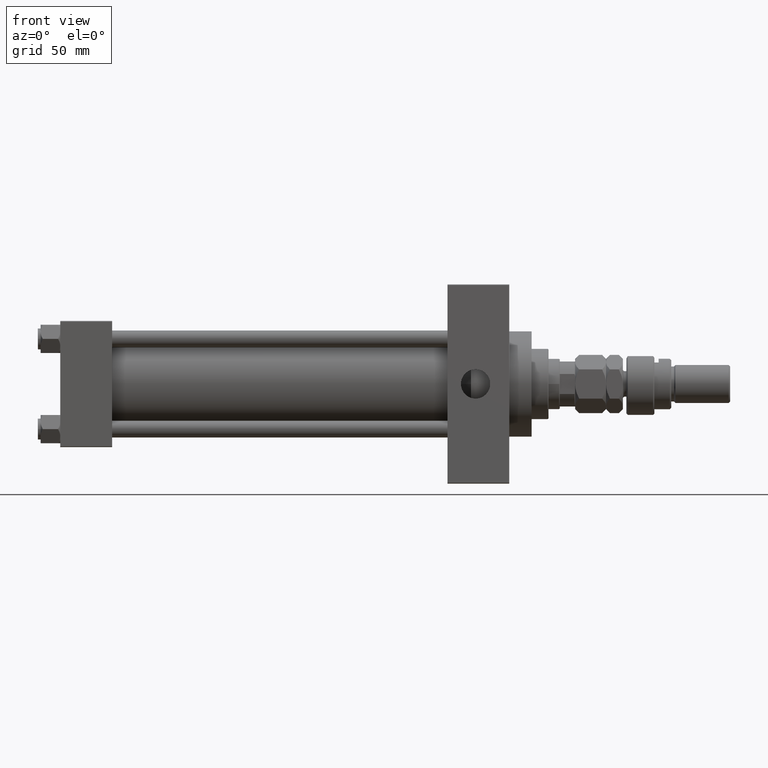
[diagram: clean part render]
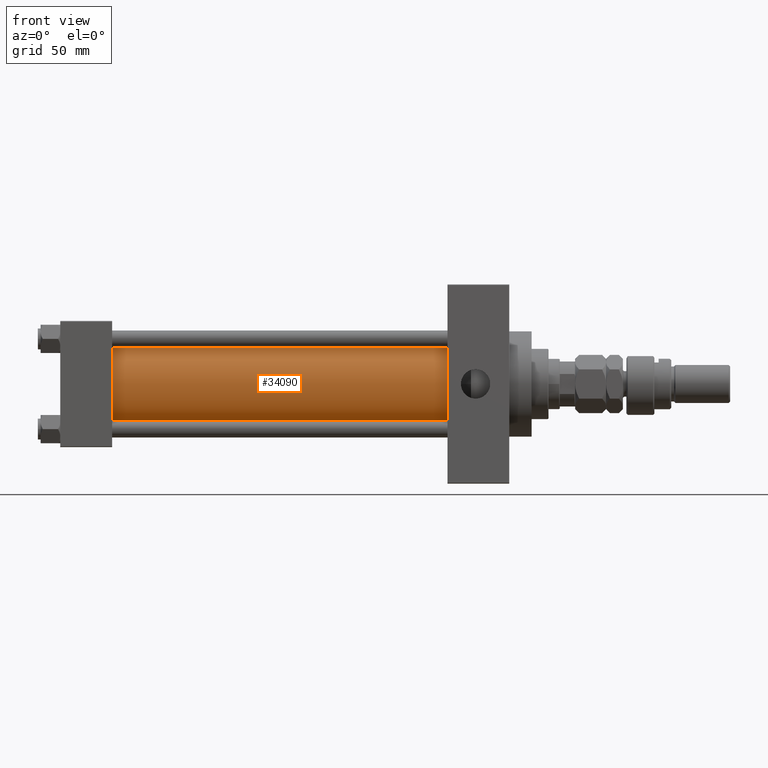
[diagram: same view with one face highlighted and labeled with its STEP entity id]
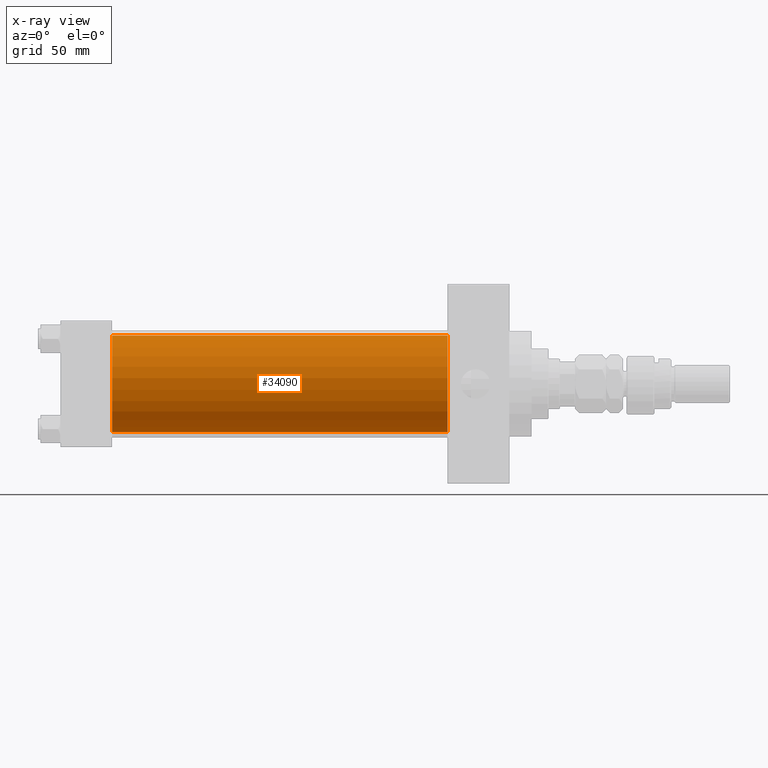
[diagram: x-ray of the same camera — body ghosted, the highlighted face saturated]
A machine part, front view. The second image highlights one B-rep face of the part: STEP entity #34090.
The next image is the same camera in x-ray: the body ghosted, the highlighted face saturated — about 0% of this face is hidden behind the body in this view.
In plain terms, the highlighted cylindrical surface (partial cylindrical patch) has radius 34.5 mm, axis along (-1, -0, -0).
Its self-contained STEP definition (entity closure, byte-faithful):
#5408 = EDGE_CURVE ( 'NONE', #37296, #14078, #23667, .T. ) ;
#7099 = VERTEX_POINT ( 'NONE', #23111 ) ;
#10559 = CARTESIAN_POINT ( 'NONE',  ( 37.00000000000000711, -2.602085213965210642E-15, 0.000000000000000000 ) ) ;
#10852 = CARTESIAN_POINT ( 'NONE',  ( 275.9999999999999432, -2.602085213965210642E-15, 0.000000000000000000 ) ) ;
#11384 = EDGE_LOOP ( 'NONE', ( #30344, #31014, #12320, #16267 ) ) ;
#12320 = ORIENTED_EDGE ( 'NONE', *, *, #36873, .T. ) ;
#12455 = AXIS2_PLACEMENT_3D ( 'NONE', #10852, #40892, #33253 ) ;
#13297 = LINE ( 'NONE', #13786, #23215 ) ;
#13786 = CARTESIAN_POINT ( 'NONE',  ( 275.9999999999999432, 1.622946243093157097E-15, -34.50000000000000000 ) ) ;
#13918 = FACE_OUTER_BOUND ( 'NONE', #11384, .T. ) ;
#14078 = VERTEX_POINT ( 'NONE', #16358 ) ;
#15141 = DIRECTION ( 'NONE',  ( 1.000000000000000000, -0.000000000000000000, 0.000000000000000000 ) ) ;
#15993 = DIRECTION ( 'NONE',  ( 0.000000000000000000, 0.000000000000000000, -1.000000000000000000 ) ) ;
#16267 = ORIENTED_EDGE ( 'NONE', *, *, #5408, .T. ) ;
#16347 = AXIS2_PLACEMENT_3D ( 'NONE', #10559, #15141, #42591 ) ;
#16358 = CARTESIAN_POINT ( 'NONE',  ( 37.00000000000000711, 1.622946243093157097E-15, -34.50000000000000000 ) ) ;
#17994 = CARTESIAN_POINT ( 'NONE',  ( 37.00000000000000711, -2.602085213965210642E-15, 34.50000000000000000 ) ) ;
#18923 = VERTEX_POINT ( 'NONE', #22601 ) ;
#22302 = EDGE_CURVE ( 'NONE', #18923, #14078, #13297, .T. ) ;
#22399 = EDGE_CURVE ( 'NONE', #7099, #18923, #26478, .T. ) ;
#22601 = CARTESIAN_POINT ( 'NONE',  ( 275.9999999999999432, 1.622946243093157097E-15, -34.50000000000000000 ) ) ;
#23111 = CARTESIAN_POINT ( 'NONE',  ( 275.9999999999999432, -2.602085213965210642E-15, 34.50000000000000000 ) ) ;
#23215 = VECTOR ( 'NONE', #40517, 1000.000000000000000 ) ;
#23667 = CIRCLE ( 'NONE', #16347, 34.50000000000000000 ) ;
#24133 = DIRECTION ( 'NONE',  ( 1.000000000000000000, 0.000000000000000000, 0.000000000000000000 ) ) ;
#26478 = CIRCLE ( 'NONE', #44337, 34.50000000000000000 ) ;
#30272 = DIRECTION ( 'NONE',  ( -1.000000000000000000, -0.000000000000000000, -0.000000000000000000 ) ) ;
#30344 = ORIENTED_EDGE ( 'NONE', *, *, #22302, .F. ) ;
#31014 = ORIENTED_EDGE ( 'NONE', *, *, #22399, .F. ) ;
#33253 = DIRECTION ( 'NONE',  ( 0.000000000000000000, 0.000000000000000000, 1.000000000000000000 ) ) ;
#34090 = ADVANCED_FACE ( 'NONE', ( #13918 ), #41640, .T. ) ;
#36873 = EDGE_CURVE ( 'NONE', #7099, #37296, #37175, .T. ) ;
#37175 = LINE ( 'NONE', #45303, #39334 ) ;
#37296 = VERTEX_POINT ( 'NONE', #17994 ) ;
#39334 = VECTOR ( 'NONE', #30272, 1000.000000000000000 ) ;
#40517 = DIRECTION ( 'NONE',  ( -1.000000000000000000, -0.000000000000000000, -0.000000000000000000 ) ) ;
#40892 = DIRECTION ( 'NONE',  ( -1.000000000000000000, -0.000000000000000000, -0.000000000000000000 ) ) ;
#41640 = CYLINDRICAL_SURFACE ( 'NONE', #12455, 34.50000000000000000 ) ;
#42591 = DIRECTION ( 'NONE',  ( 0.000000000000000000, 0.000000000000000000, 1.000000000000000000 ) ) ;
#44337 = AXIS2_PLACEMENT_3D ( 'NONE', #45832, #24133, #15993 ) ;
#45303 = CARTESIAN_POINT ( 'NONE',  ( 275.9999999999999432, -2.602085213965210642E-15, 34.50000000000000000 ) ) ;
#45832 = CARTESIAN_POINT ( 'NONE',  ( 275.9999999999999432, -2.602085213965210642E-15, 0.000000000000000000 ) ) ;